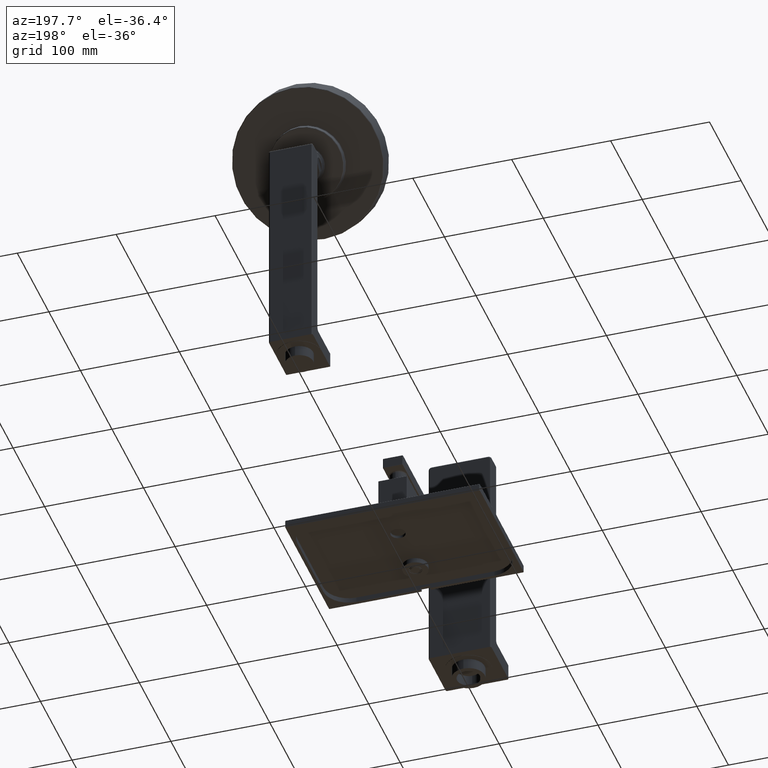
[diagram: clean part render]
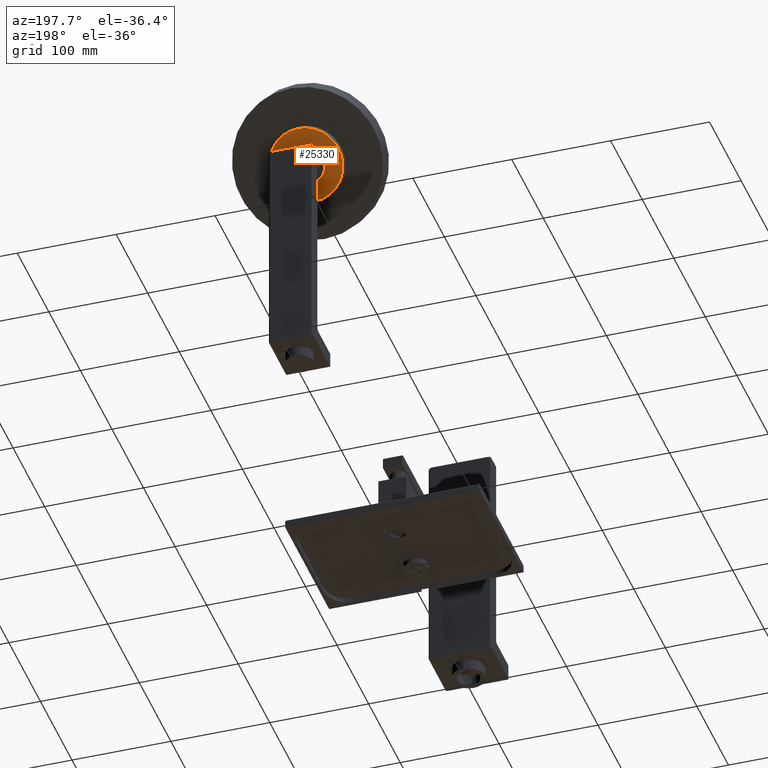
[diagram: same view with one face highlighted and labeled with its STEP entity id]
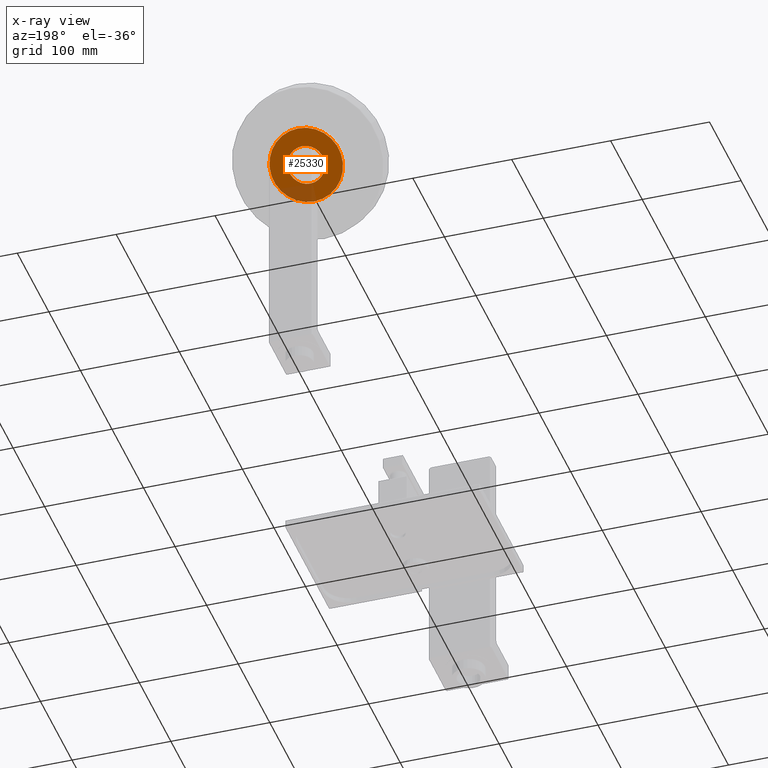
[diagram: x-ray of the same camera — body ghosted, the highlighted face saturated]
A machine part, auxiliary view. The second image highlights one B-rep face of the part: STEP entity #25330.
The next image is the same camera in x-ray: the body ghosted, the highlighted face saturated — about 14% of this face is hidden behind the body in this view.
In plain terms, the highlighted planar face has unit normal (0, 0.7071, -0.7071).
Its self-contained STEP definition (entity closure, byte-faithful):
#21190=CARTESIAN_POINT('',(0.E0,1.225315503899E1,9.522291570413E0));
#21191=DIRECTION('',(0.E0,-7.071067811865E-1,7.071067811865E-1));
#21192=DIRECTION('',(0.E0,7.071067811865E-1,7.071067811865E-1));
#21193=AXIS2_PLACEMENT_3D('',#21190,#21191,#21192);
#21198=CARTESIAN_POINT('',(0.E0,1.225315503899E1,9.522291570413E0));
#21199=DIRECTION('',(0.E0,-7.071067811865E-1,7.071067811865E-1));
#21200=DIRECTION('',(0.E0,-7.071067811865E-1,-7.071067811865E-1));
#21201=AXIS2_PLACEMENT_3D('',#21198,#21199,#21200);
#21206=CARTESIAN_POINT('',(0.E0,1.225315503899E1,9.522291570413E0));
#21207=DIRECTION('',(0.E0,7.071067811865E-1,-7.071067811865E-1));
#21208=DIRECTION('',(0.E0,-7.071067811865E-1,-7.071067811865E-1));
#21209=AXIS2_PLACEMENT_3D('',#21206,#21207,#21208);
#21214=CARTESIAN_POINT('',(0.E0,1.225315503899E1,9.522291570413E0));
#21215=DIRECTION('',(0.E0,7.071067811865E-1,-7.071067811865E-1));
#21216=DIRECTION('',(0.E0,7.071067811865E-1,7.071067811865E-1));
#21217=AXIS2_PLACEMENT_3D('',#21214,#21215,#21216);
#24281=CARTESIAN_POINT('',(0.E0,1.173696708873E1,9.006103620147E0));
#24282=CARTESIAN_POINT('',(0.E0,1.276934298926E1,1.003847952068E1));
#24283=VERTEX_POINT('',#24281);
#24284=VERTEX_POINT('',#24282);
#24317=CARTESIAN_POINT('',(0.E0,1.326431773609E1,1.053345426751E1));
#24318=CARTESIAN_POINT('',(0.E0,1.124199234190E1,8.511128873316E0));
#24319=VERTEX_POINT('',#24317);
#24320=VERTEX_POINT('',#24318);
#25315=CARTESIAN_POINT('',(0.E0,1.225315503899E1,9.522291570413E0));
#25316=DIRECTION('',(0.E0,7.071067811865E-1,-7.071067811865E-1));
#25317=DIRECTION('',(0.E0,7.071067811865E-1,7.071067811865E-1));
#25318=AXIS2_PLACEMENT_3D('',#25315,#25316,#25317);
#25319=PLANE('',#25318);
#25320=ORIENTED_EDGE('',*,*,#25283,.T.);
#25321=ORIENTED_EDGE('',*,*,#25261,.T.);
#25322=EDGE_LOOP('',(#25320,#25321));
#25323=FACE_OUTER_BOUND('',#25322,.F.);
#25325=ORIENTED_EDGE('',*,*,#25324,.T.);
#25327=ORIENTED_EDGE('',*,*,#25326,.T.);
#25328=EDGE_LOOP('',(#25325,#25327));
#25329=FACE_BOUND('',#25328,.F.);
#21194=CIRCLE('',#21193,1.43E0);
#21202=CIRCLE('',#21201,1.43E0);
#21210=CIRCLE('',#21209,7.3E-1);
#21218=CIRCLE('',#21217,7.3E-1);
#25261=EDGE_CURVE('',#24320,#24319,#21202,.T.);
#25283=EDGE_CURVE('',#24319,#24320,#21194,.T.);
#25324=EDGE_CURVE('',#24283,#24284,#21210,.T.);
#25326=EDGE_CURVE('',#24284,#24283,#21218,.T.);
#25330=ADVANCED_FACE('',(#25323,#25329),#25319,.T.);